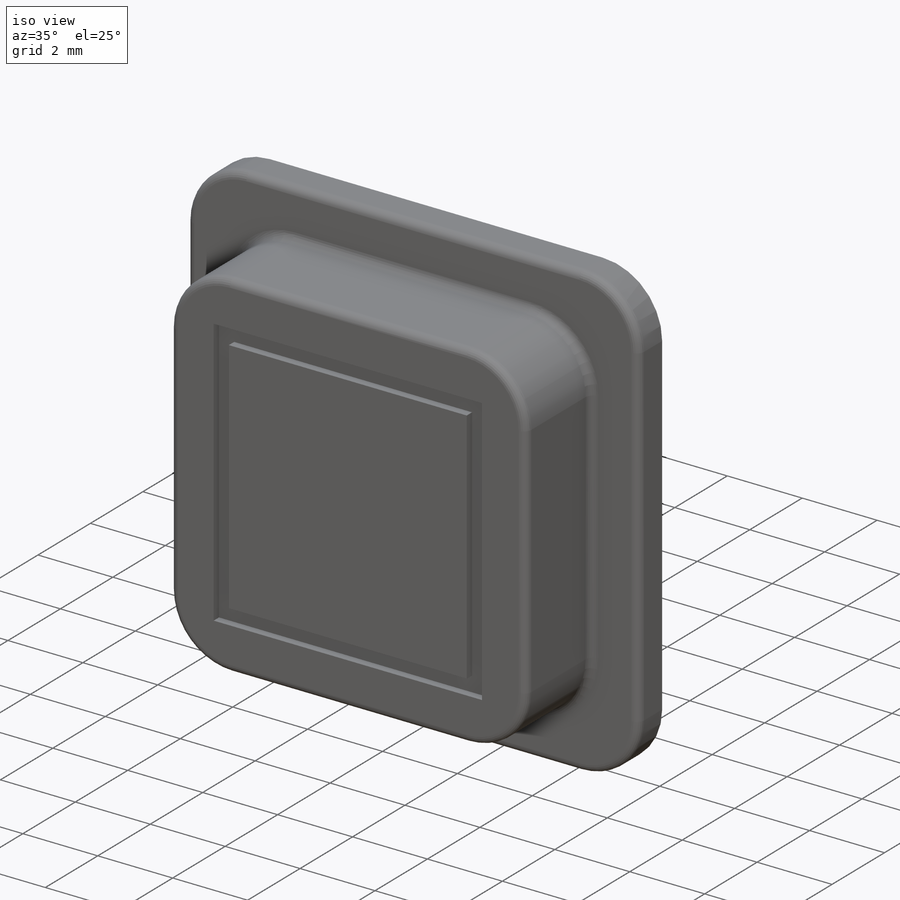
[diagram: iso view]
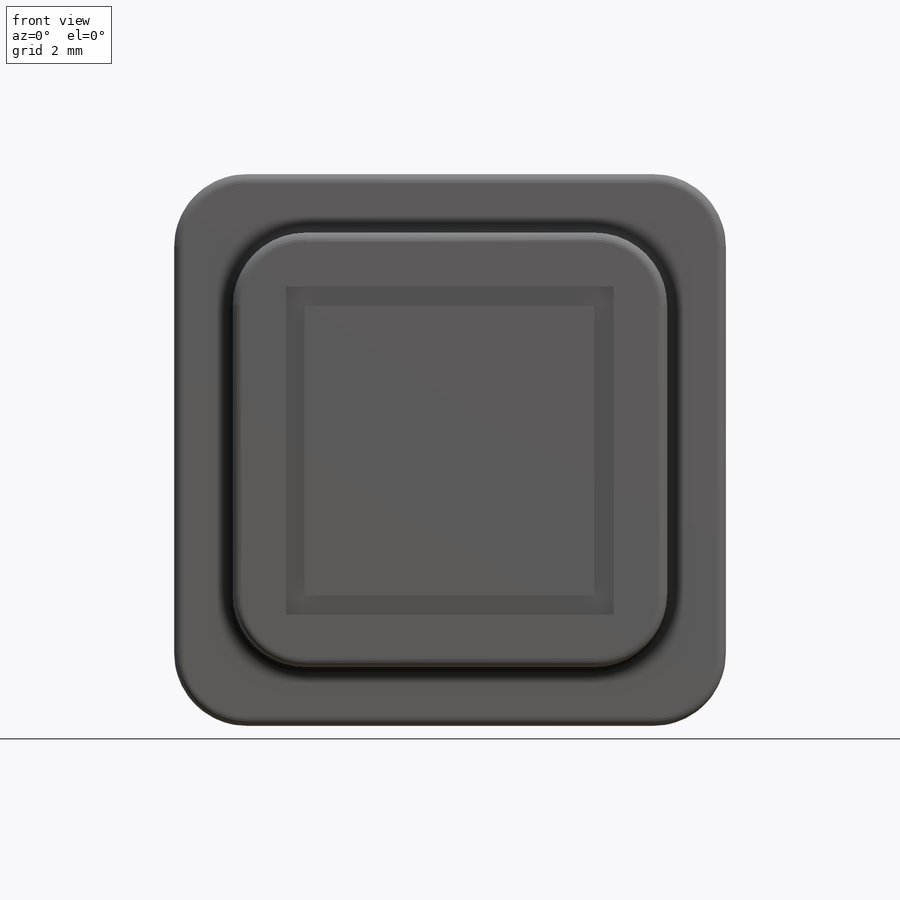
[diagram: front view]
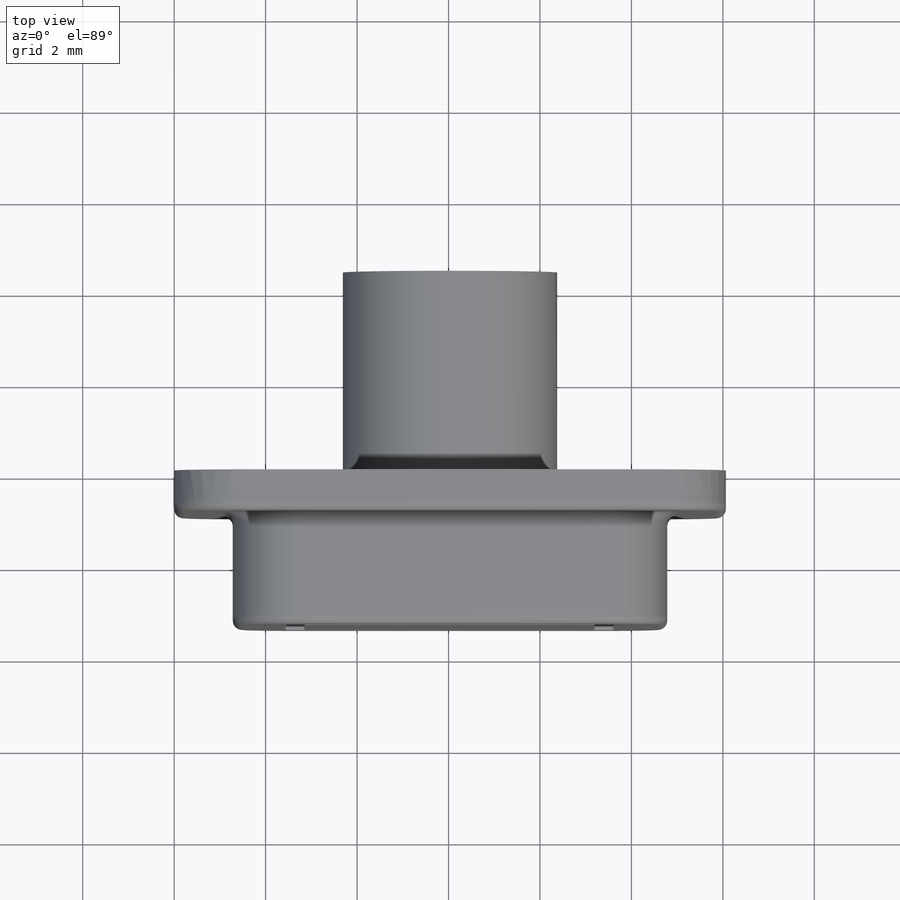
[diagram: top view]
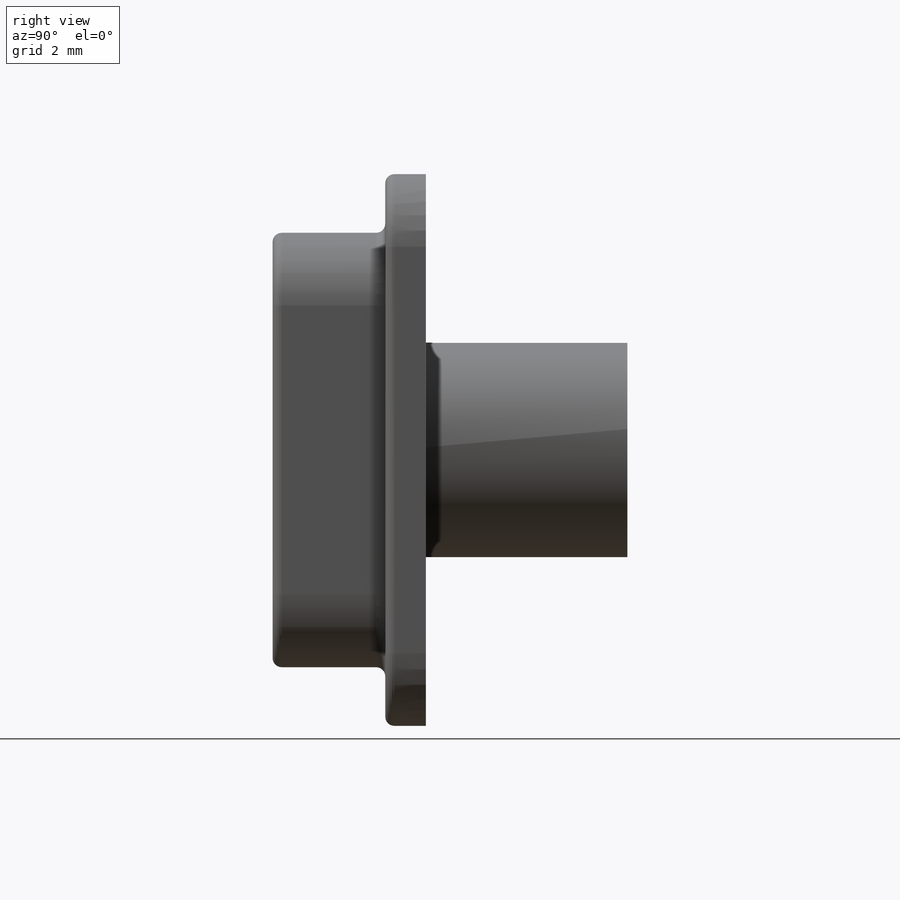
[diagram: right view]
SOLIDWORKS PART (.sldprt)
format: sldprt  version: not decoded by parser v0  size: 463,360 bytes
history: native  units: mm
features: sketch x6, extrude x3, cut_extrude x3, fillet x2, material x1 (+15 scaffold rows collapsed)
feature tree (30):
  scaffold x15  (default folders/planes/origin — collapsed)
  material  "Material <not specified>"
  sketch  "Sketch1"  dims[D1=12.065mm D2=12.065mm]
  extrude  "Extrude1"  Depth=0.889mm
  sketch  "Sketch2"  dims[D1=9.4996mm D2=9.4996mm]
  extrude  "Extrude2"  Depth=3.3528mm
  fillet  "Fillet1"  Radius=1.5875mm
  fillet  "Fillet2"  Radius=0.198437mm
  sketch  "Sketch3"  dims[D1=4.6863mm D2=2.3622mm]
  extrude  "Extrude3"  Depth=4.4069mm
  sketch  "Sketch4"  dims[D1=3.0988mm]
  cut_extrude  "Extrude4"  Depth=2.032mm
  sketch  "Sketch5"  dims[D1=6.096mm D2=4.6863mm]
  cut_extrude  "Extrude5"  Depth=0.635mm
  sketch  "Sketch6"  dims[D1=6.35mm D2=6.35mm D3=0.4064mm]
  cut_extrude  "Extrude6"  Depth=0.2032mm
decode coverage: 14 of 14 modeling features carry decoded parameters
note: suppression state not decoded; provenance and decode notes live in map.json
